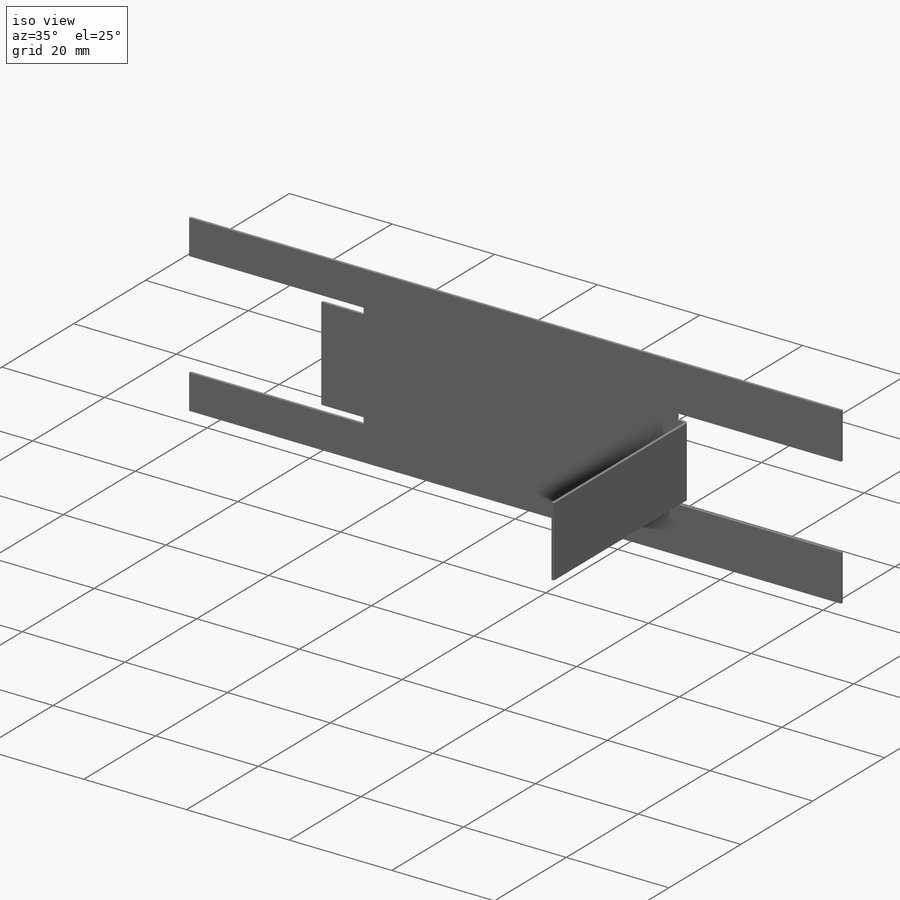
[diagram: iso view]
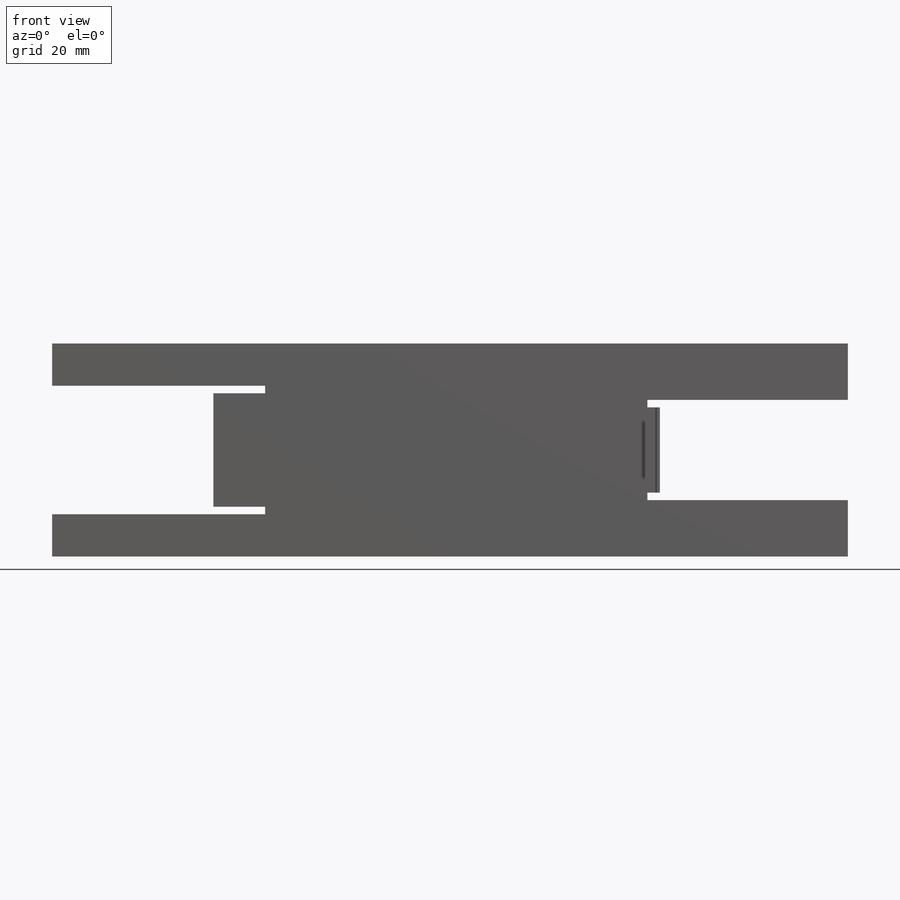
[diagram: front view]
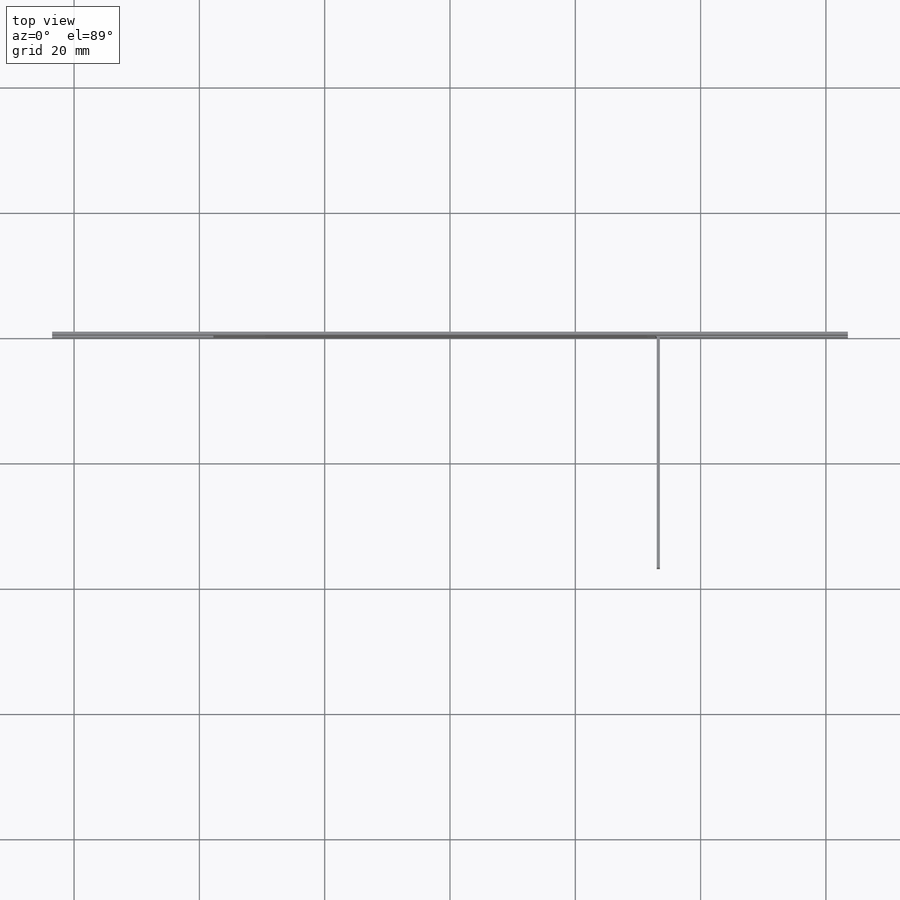
[diagram: top view]
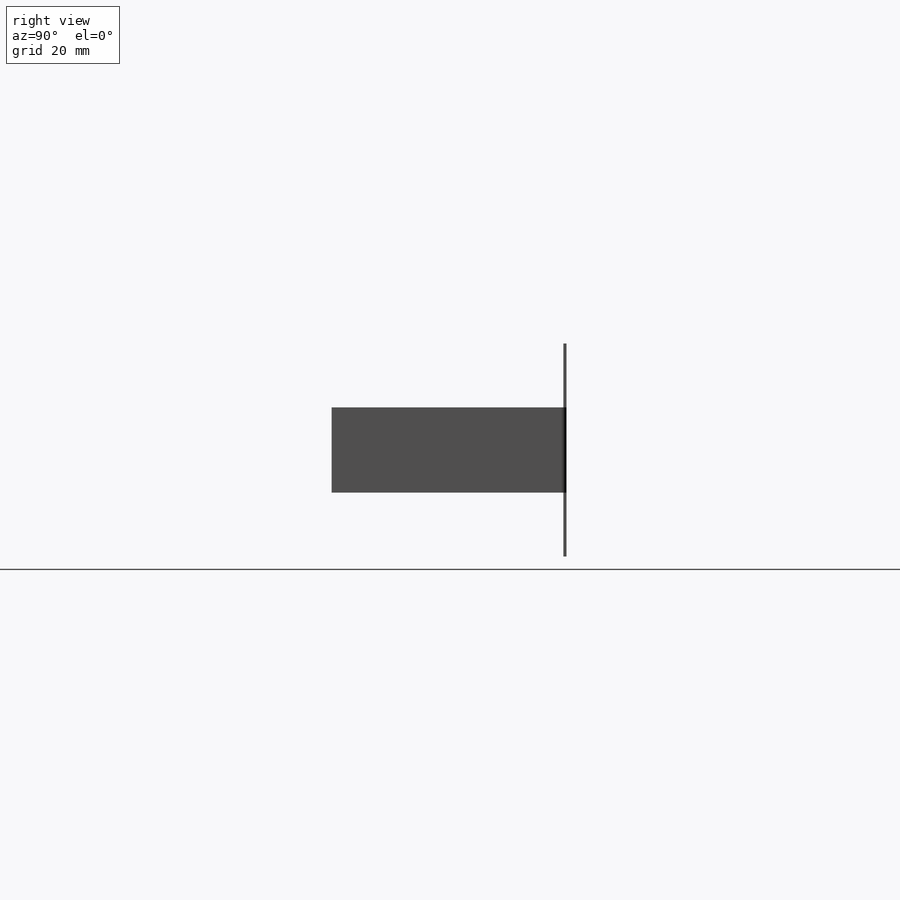
[diagram: right view]
SOLIDWORKS PART (.sldprt)
format: sldprt  version: not decoded by parser v0  size: 2,055,168 bytes
history: native  units: mm
features: sketch x35, sheet_metal_op x17, cut_extrude x4, plane x3, material x1 + 12 further entries (+9 scaffold rows collapsed; 1 parser-record rows omitted)
feature tree (82):
  scaffold x9  (default folders/planes/origin — collapsed)
  material  "Alu Lochblech"
  plane  "Ebene vorne"
  plane  "Ebene oben"
  plane  "Ebene rechts"
  sketch  "Skizze1"  dims[c1.D1=34.0mm c1.D2=127.0mm c1.D3=12.9623mm c2.D3=~52.674906deg c3.D3=~1047.197551mm c3.D4=~2.956522mm c3.D5=~28.086957mm c3.D1=0.7366mm c3.D2=0.5 c4.D3=0.0deg c4.D6=~28.64789deg]
  sheet_metal_op  "Basis-Blech1"
  sketch  "Skizze2"
  parser-record x1  (decoder bookkeeping rows leaked as tree rows — omitted from the tree; the rows remain in map.json)
  sheet_metal_op  "Skizzenbiegung2"
  sketch  "Skizze4"  dims[c1.D1=20.0mm c1.D2=35.0mm c1.D3=15.0mm c1.D4=15.0mm c1.D5=20.0mm c2.D1=12.0mm c2.D2=20.5mm c2.D3=32.0mm c2.D4=20.0mm c2.D5=30.0mm c2.D6=16.0mm]
  cut_extrude  "Schnitt-Linear austragen2"  [1 undecoded]
  sketch  "Skizze13"  dims[D1=1.2mm D2=2.0mm D3=~1.012617mm D4=~1.926391mm]
  cut_extrude  "Schnitt-Linear austragen3"  Depth=0.1mm
  sketch  "Skizze16"
  sheet_metal_op  "Kantenbiegung1"
  sketch  "Skizze22"
  sheet_metal_op  "Kantenbiegung2"
  sketch  "Skizze23"  dims[c1.D4=2.0mm c1.D1=5.0mm c1.D2=11.0mm c1.D3=19.0mm c2.D4=~2.194894mm c2.D5=2.0mm c2.D1=~12.824415mm c2.D2=~4.059991mm c3.D1=5.0mm c3.D2=11.0mm c3.D3=15.5mm c3.D4=19.0mm c3.D6=~0.477728mm c4.D1=19.0mm c4.D2=7.5mm]
  cut_extrude  "Schnitt-Linear austragen4"  [1 undecoded]
  sketch  "Skizze25"  dims[D1=9.0mm]
  cut_extrude  "Schnitt-Linear austragen6"  [1 undecoded]
  sketch  "Skizze28"
  sheet_metal_op  "Kantenbiegung3"
  sketch  "Biegung-Linien1"
  sketch  "Rahmen1"
  sheet_metal_op  "Blech1"
  "Abwicklung1"
  sketch  "Biegung-Linien2"
  sketch  "Rahmen2"  dims[Skizzen-Transformation1=0.0]
  sheet_metal_op  "Blech4"
  "Abwicklung1"
  sketch  "Biegung-Linien2"
  sketch  "Rahmen2"  dims[Skizzen-Transformation1=0.0]
  sheet_metal_op  "Blech5"
  "Abwicklung1"
  sketch  "Biegung-Linien3"
  sketch  "Rahmen3"  dims[Skizzen-Transformation3=0.0]
  sheet_metal_op  "Blech6"
  "Abwicklung6"
  sketch  "Biegung-Linien4"
  sketch  "Rahmen4"  dims[Skizzen-Transformation4=0.0]
  sheet_metal_op  "Blech7"
  "Abwicklung7"
  sketch  "Biegung-Linien5"
  sketch  "Rahmen5"  dims[Skizzen-Transformation5=0.0]
  sheet_metal_op  "Blech8"
  "Abwicklung1"
  sketch  "Biegung-Linien3"
  sketch  "Rahmen3"  dims[Skizzen-Transformation3=0.0]
  sheet_metal_op  "Blech9"
  "Abwicklung1"
  sketch  "Biegung-Linien3"
  sketch  "Rahmen3"  dims[Skizzen-Transformation3=0.0]
  sheet_metal_op  "Blech10"
  "Abwicklung1"
  sketch  "Biegung-Linien2"
  sketch  "Rahmen2"  dims[Skizzen-Transformation1=0.0]
  sheet_metal_op  "Blech12"
  "Abwicklung1"
  sketch  "Biegung-Linien3"
  sketch  "Rahmen3"  dims[Skizzen-Transformation3=0.0]
  sheet_metal_op  "Blech13"
  "Abwicklung1"
  sketch  "Biegung-Linien3"
  sketch  "Rahmen3"  dims[Skizzen-Transformation3=0.0]
  sheet_metal_op  "Blech17"
  "Abwicklung1"
  sketch  "Biegung-Linien3"
  sketch  "Rahmen3"  dims[Skizzen-Transformation3=0.0]
  sheet_metal_op  "Blech18"
  "Abwicklung1"
  sketch  "Biegung-Linien3"
  sketch  "Rahmen3"  dims[Skizzen-Transformation3=0.0]
decode coverage: 18 of 56 modeling features carry decoded parameters; 12 rows unclassified (native names shown)
note: ~ marks probable driven/reference dimensions
note: 3 parameter values undecoded
summary: no parameter record found for 3 features
note: suppression state not decoded; provenance and decode notes live in map.json
